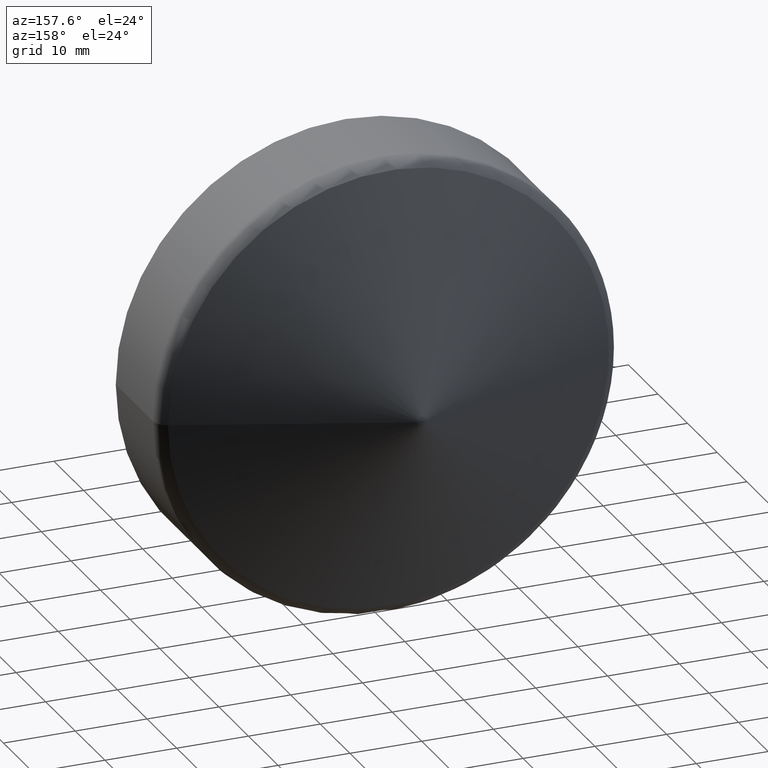
[diagram: clean part render]
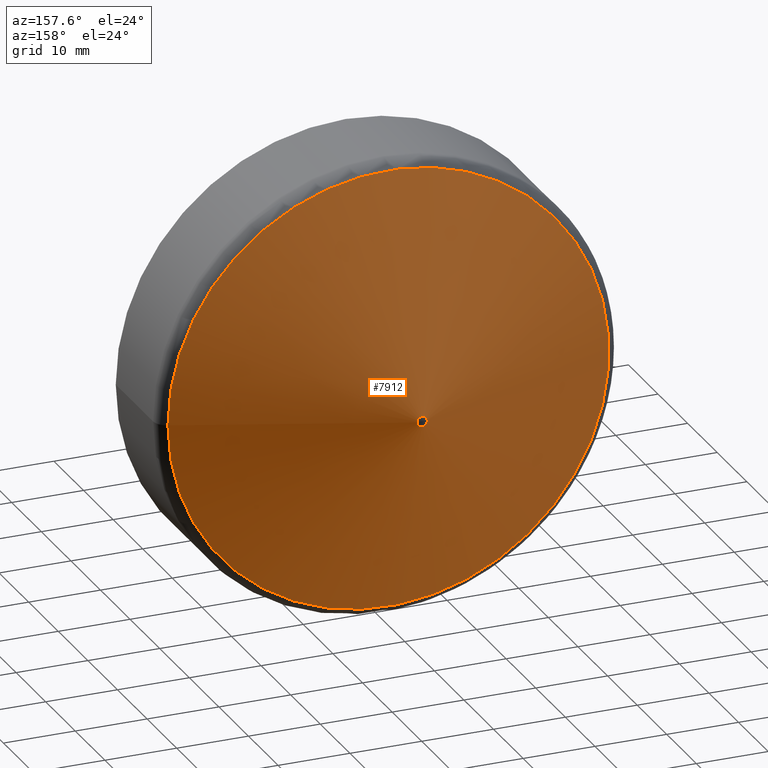
[diagram: same view with one face highlighted and labeled with its STEP entity id]
A machine part, auxiliary view. The second image highlights one B-rep face of the part: STEP entity #7912.
In plain terms, the highlighted conical surface has half-angle 69.243 deg.
Its self-contained STEP definition (entity closure, byte-faithful):
#15 = VERTEX_POINT ( 'NONE', #3775 ) ;
#180 = CARTESIAN_POINT ( 'NONE',  ( 2.347239698365763400E-016, 14.50000000000000000, 0.0000000000000000000 ) ) ;
#909 = DIRECTION ( 'NONE',  ( 2.041077998578925000E-017, -1.000000000000000000, -0.0000000000000000000 ) ) ;
#967 = CONICAL_SURFACE ( 'NONE', #1778, 30.70881105278425900, 1.208518074390041400 ) ;
#1040 = EDGE_CURVE ( 'NONE', #15, #15, #6356, .T. ) ;
#1386 = FACE_OUTER_BOUND ( 'NONE', #2152, .T. ) ;
#1575 = DIRECTION ( 'NONE',  ( 1.000000000000000000, 0.0000000000000000000, 0.0000000000000000000 ) ) ;
#1662 = ORIENTED_EDGE ( 'NONE', *, *, #1040, .T. ) ;
#1778 = AXIS2_PLACEMENT_3D ( 'NONE', #5945, #1945, #6563 ) ;
#1879 = CARTESIAN_POINT ( 'NONE',  ( 30.70881105278425900, 14.50000000000000000, 0.0000000000000000000 ) ) ;
#1945 = DIRECTION ( 'NONE',  ( 2.041077998578925000E-017, -1.000000000000000000, -0.0000000000000000000 ) ) ;
#2152 = EDGE_LOOP ( 'NONE', ( #2631 ) ) ;
#2170 = AXIS2_PLACEMENT_3D ( 'NONE', #180, #909, #1575 ) ;
#2240 = CARTESIAN_POINT ( 'NONE',  ( 2.649652921718475500E-018, 25.87018365179756400, 0.0000000000000000000 ) ) ;
#2631 = ORIENTED_EDGE ( 'NONE', *, *, #3048, .F. ) ;
#2877 = DIRECTION ( 'NONE',  ( 1.000000000000000000, 0.0000000000000000000, 0.0000000000000000000 ) ) ;
#3048 = EDGE_CURVE ( 'NONE', #5146, #5146, #5699, .T. ) ;
#3775 = CARTESIAN_POINT ( 'NONE',  ( 0.7088110527842577100, 25.87018365179756400, 0.0000000000000000000 ) ) ;
#5146 = VERTEX_POINT ( 'NONE', #1879 ) ;
#5699 = CIRCLE ( 'NONE', #2170, 30.70881105278425900 ) ;
#5945 = CARTESIAN_POINT ( 'NONE',  ( 2.347239698365763400E-016, 14.50000000000000000, 0.0000000000000000000 ) ) ;
#6356 = CIRCLE ( 'NONE', #6671, 0.7088110527842577100 ) ;
#6563 = DIRECTION ( 'NONE',  ( 1.000000000000000000, 0.0000000000000000000, 0.0000000000000000000 ) ) ;
#6671 = AXIS2_PLACEMENT_3D ( 'NONE', #2240, #6849, #2877 ) ;
#6849 = DIRECTION ( 'NONE',  ( 2.041077998578925000E-017, -1.000000000000000000, -0.0000000000000000000 ) ) ;
#7543 = EDGE_LOOP ( 'NONE', ( #1662 ) ) ;
#7912 = ADVANCED_FACE ( 'NONE', ( #8466, #1386 ), #967, .T. ) ;
#8466 = FACE_BOUND ( 'NONE', #7543, .T. ) ;